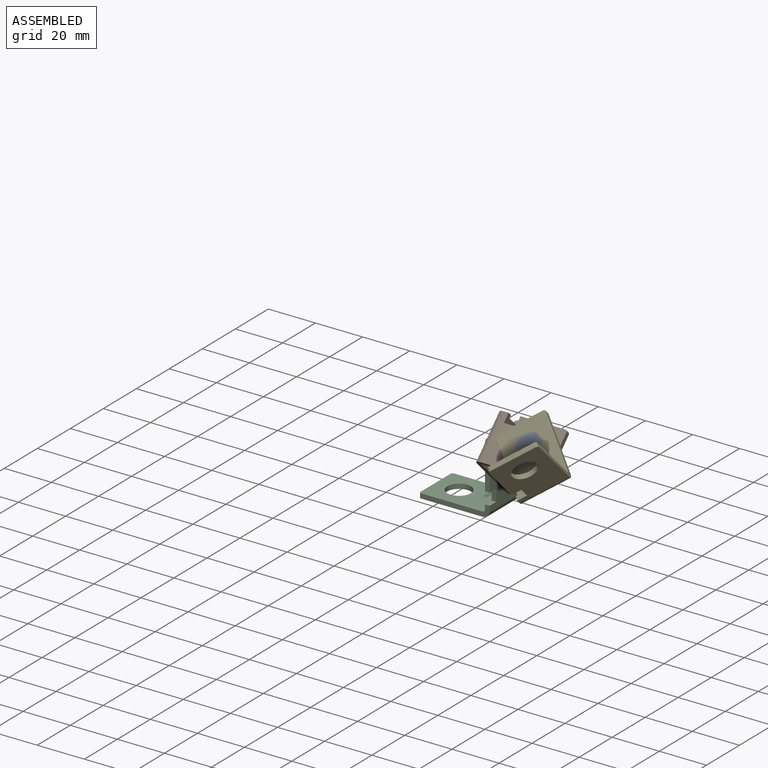
[diagram: assembled view]
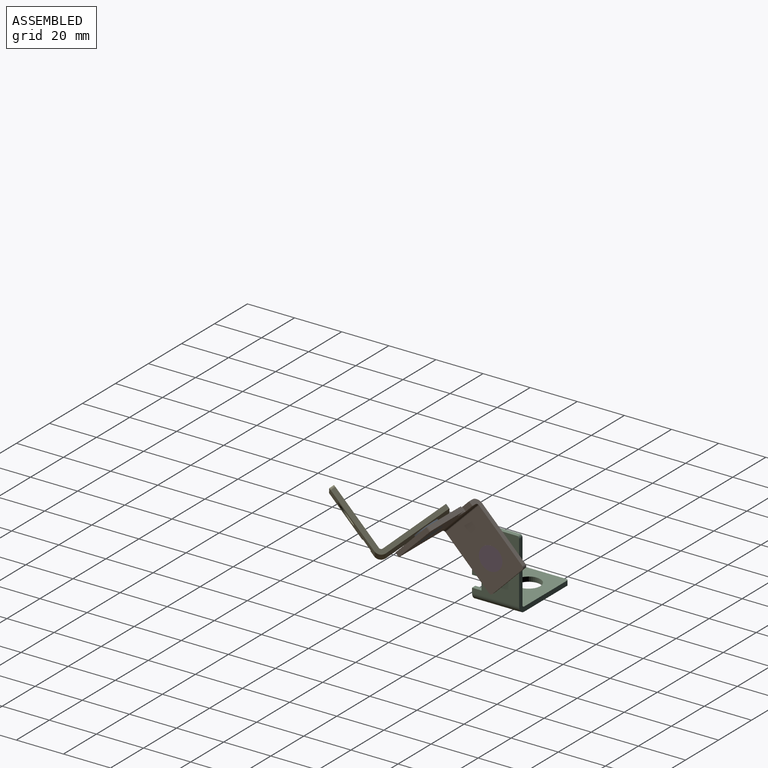
[diagram: assembled view, second angle]
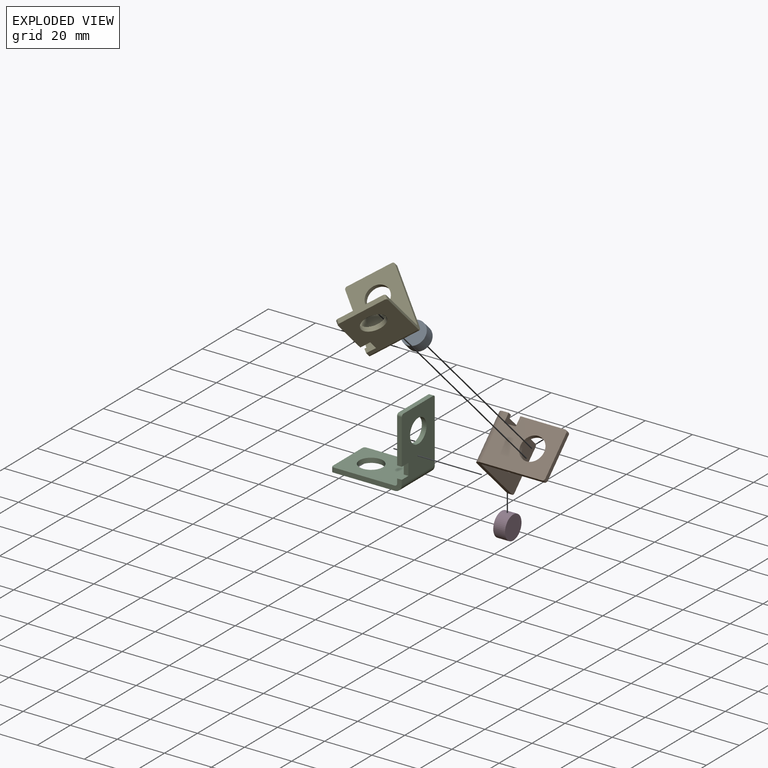
[diagram: exploded view]
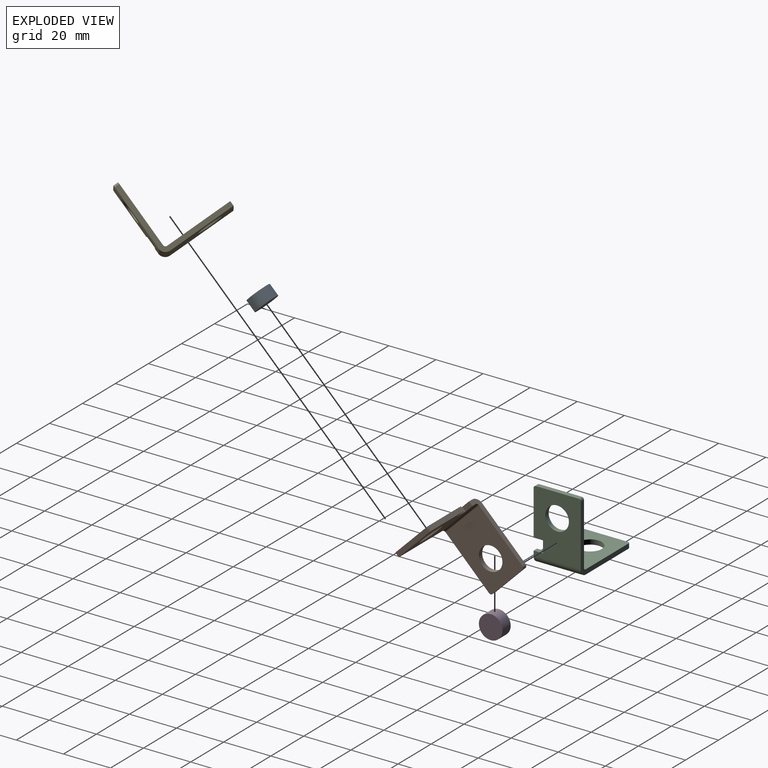
[diagram: exploded view, second angle]
ASSEMBLY  parts=5 mates=8
PART A: 3 faces, bbox 10x5x10 mm
  f0: cylinder r=5mm len=10mm, axis (0,1,0), area 157.1mm2, adj f1,f2
  f1: plane 10x10mm, normal (0,-1,0), area 78.5mm2, adj f0
  f2: plane 10x10mm, normal (0,1,0), area 78.5mm2, adj f0
PART B: 20 faces, bbox 30x20x30 mm
  f0: plane 27x20mm, normal (1,0,0), area 441mm2, adj f2,f7,f8,f9,f10,f11,f12,f13
  f1: plane 27x20mm, normal (-1,0,0), area 441mm2, adj f2,f3,f8,f9,f10,f11,f12,f13
  f2: plane 19x2mm, normal (0,-1,0), area 38mm2, adj f0,f1,f11,f16
  f3: cylinder r=1mm len=20mm, axis (0,-1,0), area 31.4mm2, adj f1,f4,f9,f10
  f4: plane 27x20mm, normal (0,0,1), area 461mm2, adj f3,f5,f9,f10,f14,f17,f19
  f5: plane 18x2mm, normal (-1,0,0), area 36mm2, adj f4,f6,f17,f19
  f6: plane 27x20mm, normal (0,0,-1), area 461mm2, adj f5,f7,f9,f10,f14,f17,f19
  f7: cylinder r=3mm len=20mm, axis (0,-1,0), area 94.2mm2, adj f0,f6,f9,f10
  f8: plane 18x2mm, normal (0,0,1), area 36mm2, adj f0,f1,f16,f18
  f9: plane 29x29mm, normal (0,1,0), area 110.3mm2, adj f0,f1,f3,f4,f6,f7,f18,f19
  f10: plane 29x5mm, normal (0,-1,0), area 62.3mm2, adj f0,f1,f3,f4,f6,f7,f13,f17
  f11: plane 4x2mm, normal (0,0,-1), area 8mm2, adj f0,f1,f2,f12
  f12: plane 5x2mm, normal (0,-1,0), area 10mm2, adj f0,f1,f11,f13
  f13: plane 4x2mm, normal (0,0,1), area 8mm2, adj f0,f1,f10,f12
  f14: cylinder r=5mm len=10mm, axis (0,0,1), area 62.8mm2, adj f4,f6
  f15: cylinder r=5mm len=10mm, axis (-1,0,0), area 62.8mm2, adj f0,f1
  f16: cylinder r=1mm len=2mm, axis (-1,0,0), area 3.1mm2, adj f0,f1,f2,f8
  f17: cylinder r=1mm len=2mm, axis (0,0,-1), area 3.1mm2, adj f4,f5,f6,f10
  f18: cylinder r=1mm len=2mm, axis (1,0,0), area 3.1mm2, adj f0,f1,f8,f9
  f19: cylinder r=1mm len=2mm, axis (0,0,1), area 3.1mm2, adj f4,f5,f6,f9
PART C: same geometry as B
PART D: same geometry as A
PART E: same geometry as B
PLACE A rot(axis=(-0.36,0.86,-0.36),98.4deg) t=(19,-2.73,30.73)mm
PLACE B rot(axis=(-0.68,0.28,-0.68),148.6deg) t=(-1,2.93,39.21)mm fixed
PLACE C t=(-2,0,-2)mm fixed
PLACE D rot(axis=(-0.58,-0.58,-0.58),120deg) t=(1,10,18)mm
PLACE E rot(axis=(0.68,0.28,-0.68),62.8deg) t=(26.07,-19.85,17.85)mm fixed
MATE slider A.f0 <-> B.f15  axis (0,0.71,-0.71) through (19,-4.5,32.5)mm
MATE cylindrical A.f0 <-> E.f14  axis (0,0.71,-0.71) through (19,-2.73,30.73)mm
MATE planar B.f4 <-> D.f0  axis (1,0,0) through (1,7.09,20.91)mm
MATE planar A.f0 <-> E.f4  axis (0,-0.71,0.71) through (19,-6.26,34.26)mm
MATE cylindrical D.f0 <-> B.f14  axis (1,0,0) through (1,10,18)mm
MATE planar D.f0 <-> C.f1  axis (-1,0,0) through (-4,10,18)mm
MATE planar B.f1 <-> A.f0  axis (0,0.71,-0.71) through (15,-9.8,23.66)mm
MATE slider D.f0 <-> C.f15  axis (1,0,0) through (1,10,18)mm
